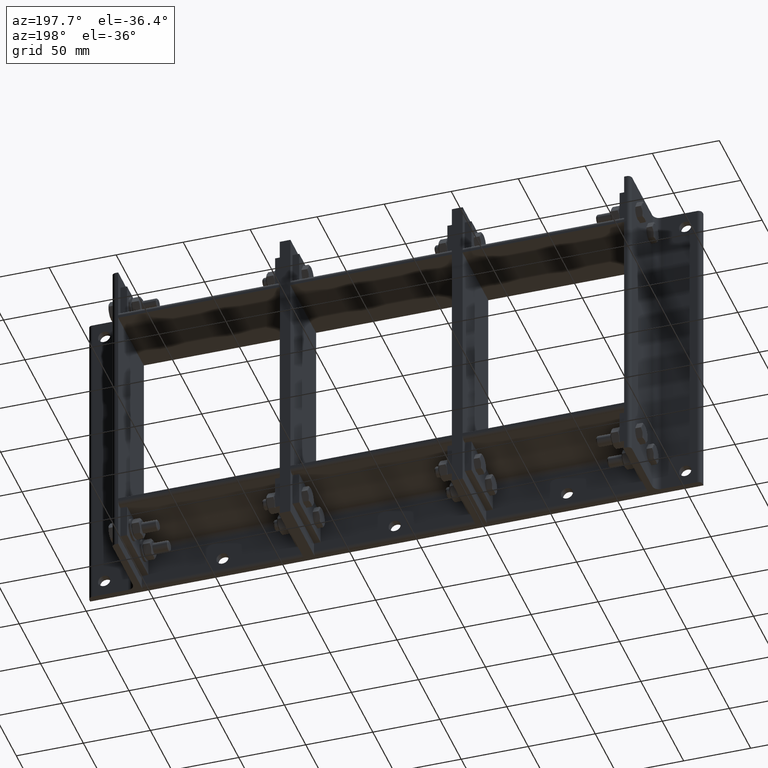
[diagram: clean part render]
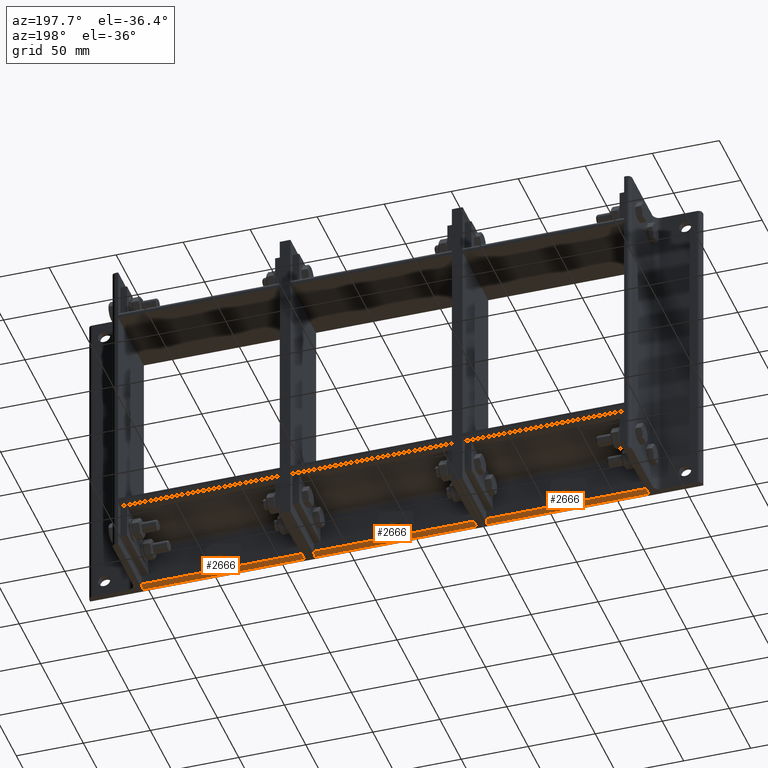
[diagram: same view with one multi-face feature highlighted, each face labeled with its STEP entity id]
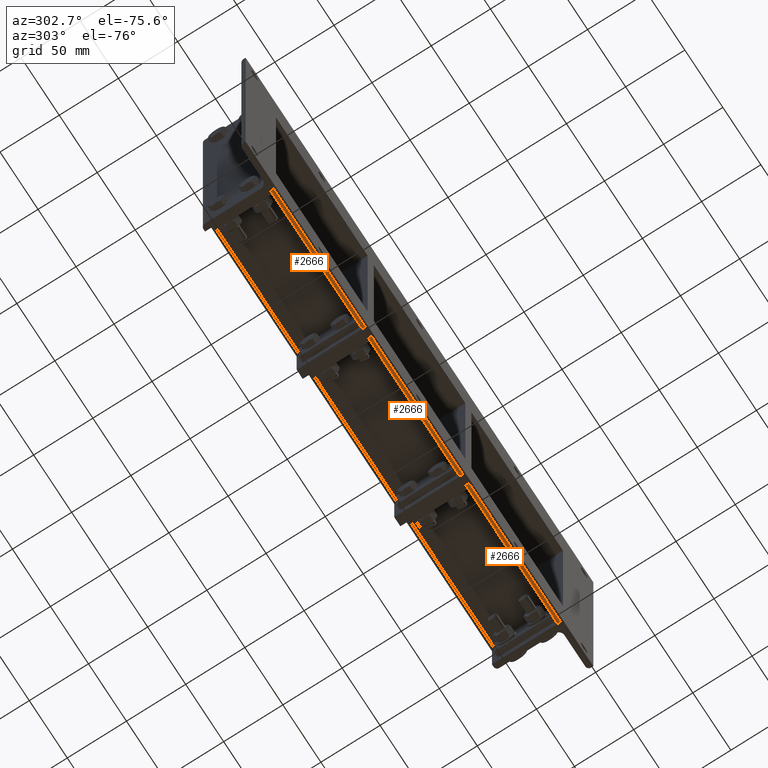
[diagram: same view with one multi-face feature highlighted, each face labeled with its STEP entity id]
A machine part, auxiliary view. The highlighted faces form ONE feature: a constant-radius fillet chain: 3 tangent blend faces with common blend radius 3 mm. The faces share edges in the B-rep.
A second angle (auxiliary view) of the same feature is appended — it is thin or edge-on in the first view.
Their STEP definitions:
[1] entity #2666 (Cylinder):
#2460=CARTESIAN_POINT('',(37.0,4.999999999999999,120.5));
#2461=VERTEX_POINT('',#2460);
#2468=CARTESIAN_POINT('',(37.0,4.999999999999999,0.0));
#2469=VERTEX_POINT('',#2468);
#2470=CARTESIAN_POINT('',(37.0,4.999999999999999,0.0));
#2471=DIRECTION('',(0.0,0.0,1.0));
#2472=VECTOR('',#2471,120.5);
#2473=LINE('',#2470,#2472);
#2474=EDGE_CURVE('',#2469,#2461,#2473,.T.);
#2634=CARTESIAN_POINT('',(37.0,1.999999999999999,0.0));
#2635=DIRECTION('',(0.0,0.0,1.0));
#2636=DIRECTION('',(0.707106781186547,0.707106781186548,0.0));
#2637=AXIS2_PLACEMENT_3D('',#2634,#2635,#2636);
#2638=CYLINDRICAL_SURFACE('',#2637,3.0);
#2639=CARTESIAN_POINT('',(40.0,1.999999999999999,120.5));
#2640=VERTEX_POINT('',#2639);
#2641=CARTESIAN_POINT('',(37.0,1.999999999999999,120.5));
#2642=DIRECTION('',(0.0,0.0,-1.0));
#2643=DIRECTION('',(0.707106781186547,0.707106781186548,0.0));
#2644=AXIS2_PLACEMENT_3D('',#2641,#2642,#2643);
#2645=CIRCLE('',#2644,3.0);
#2646=EDGE_CURVE('',#2461,#2640,#2645,.T.);
#2647=ORIENTED_EDGE('',*,*,#2646,.T.);
#2648=CARTESIAN_POINT('',(40.0,1.999999999999999,0.0));
#2649=VERTEX_POINT('',#2648);
#2650=CARTESIAN_POINT('',(40.0,1.999999999999999,120.5));
#2651=DIRECTION('',(0.0,0.0,-1.0));
#2652=VECTOR('',#2651,120.5);
#2653=LINE('',#2650,#2652);
#2654=EDGE_CURVE('',#2640,#2649,#2653,.T.);
#2655=ORIENTED_EDGE('',*,*,#2654,.T.);
#2656=CARTESIAN_POINT('',(37.0,1.999999999999999,0.0));
#2657=DIRECTION('',(0.0,0.0,1.0));
#2658=DIRECTION('',(0.707106781186547,0.707106781186548,0.0));
#2659=AXIS2_PLACEMENT_3D('',#2656,#2657,#2658);
#2660=CIRCLE('',#2659,3.0);
#2661=EDGE_CURVE('',#2649,#2469,#2660,.T.);
#2662=ORIENTED_EDGE('',*,*,#2661,.T.);
#2663=ORIENTED_EDGE('',*,*,#2474,.T.);
#2664=EDGE_LOOP('',(#2647,#2655,#2662,#2663));
#2665=FACE_OUTER_BOUND('',#2664,.T.);
#2666=ADVANCED_FACE('',(#2665),#2638,.T.);
[2] entity #2666 (Cylinder):
#2460=CARTESIAN_POINT('',(37.0,4.999999999999999,120.5));
#2461=VERTEX_POINT('',#2460);
#2468=CARTESIAN_POINT('',(37.0,4.999999999999999,0.0));
#2469=VERTEX_POINT('',#2468);
#2470=CARTESIAN_POINT('',(37.0,4.999999999999999,0.0));
#2471=DIRECTION('',(0.0,0.0,1.0));
#2472=VECTOR('',#2471,120.5);
#2473=LINE('',#2470,#2472);
#2474=EDGE_CURVE('',#2469,#2461,#2473,.T.);
#2634=CARTESIAN_POINT('',(37.0,1.999999999999999,0.0));
#2635=DIRECTION('',(0.0,0.0,1.0));
#2636=DIRECTION('',(0.707106781186547,0.707106781186548,0.0));
#2637=AXIS2_PLACEMENT_3D('',#2634,#2635,#2636);
#2638=CYLINDRICAL_SURFACE('',#2637,3.0);
#2639=CARTESIAN_POINT('',(40.0,1.999999999999999,120.5));
#2640=VERTEX_POINT('',#2639);
#2641=CARTESIAN_POINT('',(37.0,1.999999999999999,120.5));
#2642=DIRECTION('',(0.0,0.0,-1.0));
#2643=DIRECTION('',(0.707106781186547,0.707106781186548,0.0));
#2644=AXIS2_PLACEMENT_3D('',#2641,#2642,#2643);
#2645=CIRCLE('',#2644,3.0);
#2646=EDGE_CURVE('',#2461,#2640,#2645,.T.);
#2647=ORIENTED_EDGE('',*,*,#2646,.T.);
#2648=CARTESIAN_POINT('',(40.0,1.999999999999999,0.0));
#2649=VERTEX_POINT('',#2648);
#2650=CARTESIAN_POINT('',(40.0,1.999999999999999,120.5));
#2651=DIRECTION('',(0.0,0.0,-1.0));
#2652=VECTOR('',#2651,120.5);
#2653=LINE('',#2650,#2652);
#2654=EDGE_CURVE('',#2640,#2649,#2653,.T.);
#2655=ORIENTED_EDGE('',*,*,#2654,.T.);
#2656=CARTESIAN_POINT('',(37.0,1.999999999999999,0.0));
#2657=DIRECTION('',(0.0,0.0,1.0));
#2658=DIRECTION('',(0.707106781186547,0.707106781186548,0.0));
#2659=AXIS2_PLACEMENT_3D('',#2656,#2657,#2658);
#2660=CIRCLE('',#2659,3.0);
#2661=EDGE_CURVE('',#2649,#2469,#2660,.T.);
#2662=ORIENTED_EDGE('',*,*,#2661,.T.);
#2663=ORIENTED_EDGE('',*,*,#2474,.T.);
#2664=EDGE_LOOP('',(#2647,#2655,#2662,#2663));
#2665=FACE_OUTER_BOUND('',#2664,.T.);
#2666=ADVANCED_FACE('',(#2665),#2638,.T.);
[3] entity #2666 (Cylinder):
#2460=CARTESIAN_POINT('',(37.0,4.999999999999999,120.5));
#2461=VERTEX_POINT('',#2460);
#2468=CARTESIAN_POINT('',(37.0,4.999999999999999,0.0));
#2469=VERTEX_POINT('',#2468);
#2470=CARTESIAN_POINT('',(37.0,4.999999999999999,0.0));
#2471=DIRECTION('',(0.0,0.0,1.0));
#2472=VECTOR('',#2471,120.5);
#2473=LINE('',#2470,#2472);
#2474=EDGE_CURVE('',#2469,#2461,#2473,.T.);
#2634=CARTESIAN_POINT('',(37.0,1.999999999999999,0.0));
#2635=DIRECTION('',(0.0,0.0,1.0));
#2636=DIRECTION('',(0.707106781186547,0.707106781186548,0.0));
#2637=AXIS2_PLACEMENT_3D('',#2634,#2635,#2636);
#2638=CYLINDRICAL_SURFACE('',#2637,3.0);
#2639=CARTESIAN_POINT('',(40.0,1.999999999999999,120.5));
#2640=VERTEX_POINT('',#2639);
#2641=CARTESIAN_POINT('',(37.0,1.999999999999999,120.5));
#2642=DIRECTION('',(0.0,0.0,-1.0));
#2643=DIRECTION('',(0.707106781186547,0.707106781186548,0.0));
#2644=AXIS2_PLACEMENT_3D('',#2641,#2642,#2643);
#2645=CIRCLE('',#2644,3.0);
#2646=EDGE_CURVE('',#2461,#2640,#2645,.T.);
#2647=ORIENTED_EDGE('',*,*,#2646,.T.);
#2648=CARTESIAN_POINT('',(40.0,1.999999999999999,0.0));
#2649=VERTEX_POINT('',#2648);
#2650=CARTESIAN_POINT('',(40.0,1.999999999999999,120.5));
#2651=DIRECTION('',(0.0,0.0,-1.0));
#2652=VECTOR('',#2651,120.5);
#2653=LINE('',#2650,#2652);
#2654=EDGE_CURVE('',#2640,#2649,#2653,.T.);
#2655=ORIENTED_EDGE('',*,*,#2654,.T.);
#2656=CARTESIAN_POINT('',(37.0,1.999999999999999,0.0));
#2657=DIRECTION('',(0.0,0.0,1.0));
#2658=DIRECTION('',(0.707106781186547,0.707106781186548,0.0));
#2659=AXIS2_PLACEMENT_3D('',#2656,#2657,#2658);
#2660=CIRCLE('',#2659,3.0);
#2661=EDGE_CURVE('',#2649,#2469,#2660,.T.);
#2662=ORIENTED_EDGE('',*,*,#2661,.T.);
#2663=ORIENTED_EDGE('',*,*,#2474,.T.);
#2664=EDGE_LOOP('',(#2647,#2655,#2662,#2663));
#2665=FACE_OUTER_BOUND('',#2664,.T.);
#2666=ADVANCED_FACE('',(#2665),#2638,.T.);